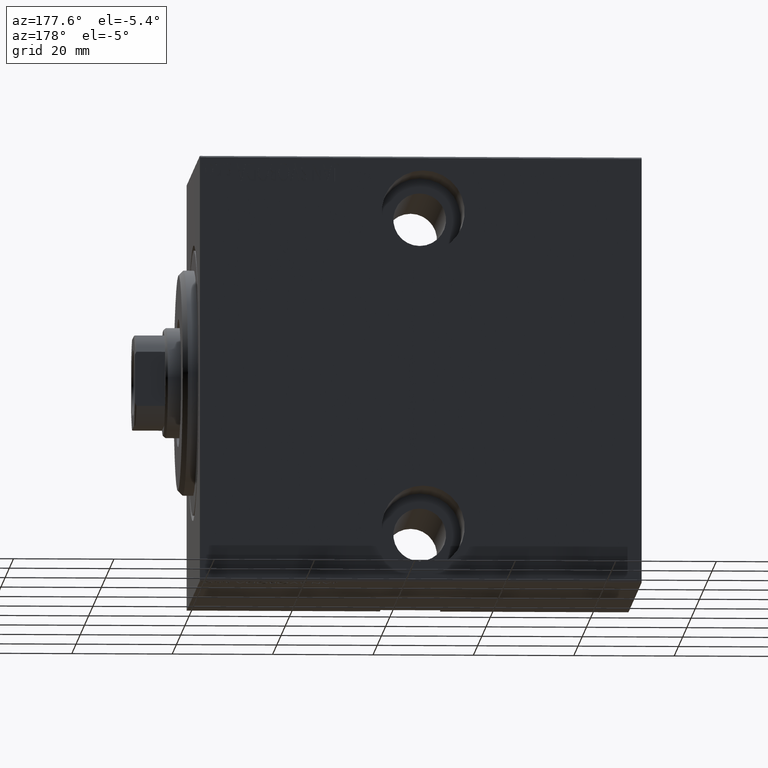
[diagram: clean part render]
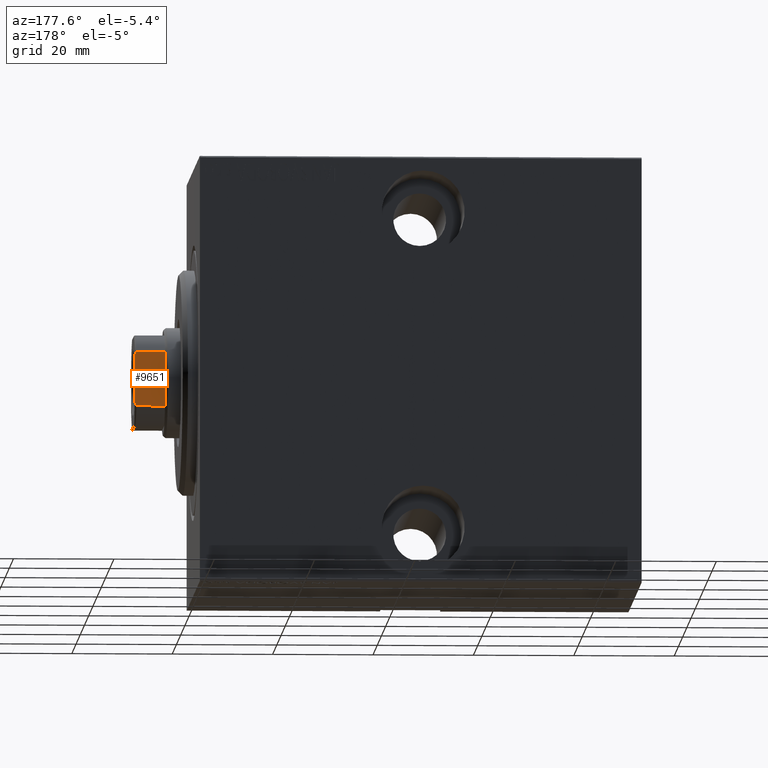
[diagram: same view with one face highlighted and labeled with its STEP entity id]
A machine part, auxiliary view. The second image highlights one B-rep face of the part: STEP entity #9651.
In plain terms, the highlighted planar face has unit normal (0, -1, -0).
Its self-contained STEP definition (entity closure, byte-faithful):
#2316 = CARTESIAN_POINT ( 'NONE',  ( -5.408326913195988794, 8.999999999999998224, -0.001000000000001000089 ) ) ;
#3635 = CARTESIAN_POINT ( 'NONE',  ( 5.207299490555468147, 8.999999999999998224, 87.80354495430066208 ) ) ;
#4510 = CARTESIAN_POINT ( 'NONE',  ( -4.800000000000012257, 8.999999999999998224, 88.00000000000000000 ) ) ;
#6901 = CARTESIAN_POINT ( 'NONE',  ( 4.799999999999979394, 8.999999999999998224, 88.00000000000000000 ) ) ;
#6942 = CARTESIAN_POINT ( 'NONE',  ( -9.000000000000001776, 8.999999999999998224, 81.99999999999998579 ) ) ;
#7178 = ORIENTED_EDGE ( 'NONE', *, *, #30001, .T. ) ;
#7524 = CARTESIAN_POINT ( 'NONE',  ( -4.800000000000012257, 8.999999999999998224, 88.00000000000000000 ) ) ;
#8122 = B_SPLINE_CURVE_WITH_KNOTS ( 'NONE', 3,
 ( #28148, #41413, #15730, #4510 ),
 .UNSPECIFIED., .F., .F.,
 ( 4, 4 ),
 ( 0.000000000000000000, 0.0006782784334759147087 ),
 .UNSPECIFIED. ) ;
#9477 = VERTEX_POINT ( 'NONE', #28650 ) ;
#9651 = ADVANCED_FACE ( 'NONE', ( #20114 ), #36812, .F. ) ;
#10942 = CARTESIAN_POINT ( 'NONE',  ( -5.408326913195988794, 8.999999999999998224, 87.70000000000000284 ) ) ;
#10990 = CARTESIAN_POINT ( 'NONE',  ( 4.799999999999979394, 8.999999999999998224, 88.00000000000000000 ) ) ;
#11633 = B_SPLINE_CURVE_WITH_KNOTS ( 'NONE', 3,
 ( #6901, #20134, #3635, #16872 ),
 .UNSPECIFIED., .F., .F.,
 ( 4, 4 ),
 ( 0.000000000000000000, 0.0006782784334759580768 ),
 .UNSPECIFIED. ) ;
#12509 = LINE ( 'NONE', #2316, #26177 ) ;
#12615 = DIRECTION ( 'NONE',  ( -1.000000000000000000, -0.000000000000000000, -0.000000000000000000 ) ) ;
#12889 = ORIENTED_EDGE ( 'NONE', *, *, #40208, .F. ) ;
#13319 = ORIENTED_EDGE ( 'NONE', *, *, #31642, .T. ) ;
#14185 = VECTOR ( 'NONE', #21021, 1000.000000000000000 ) ;
#15730 = CARTESIAN_POINT ( 'NONE',  ( -5.004607318780315062, 8.999999999999998224, 87.90371420292692051 ) ) ;
#16854 = DIRECTION ( 'NONE',  ( 0.000000000000000000, -1.000000000000000000, 0.000000000000000000 ) ) ;
#16872 = CARTESIAN_POINT ( 'NONE',  ( 5.408326913195989682, 8.999999999999998224, 87.69999999999997442 ) ) ;
#17840 = VECTOR ( 'NONE', #21690, 1000.000000000000000 ) ;
#18514 = ORIENTED_EDGE ( 'NONE', *, *, #39264, .T. ) ;
#18569 = EDGE_CURVE ( 'NONE', #25703, #28573, #8122, .T. ) ;
#20114 = FACE_OUTER_BOUND ( 'NONE', #39797, .T. ) ;
#20134 = CARTESIAN_POINT ( 'NONE',  ( 5.004607318780289305, 8.999999999999998224, 87.90371420292690630 ) ) ;
#21021 = DIRECTION ( 'NONE',  ( -1.000000000000000000, -0.000000000000000000, -0.000000000000000000 ) ) ;
#21690 = DIRECTION ( 'NONE',  ( -0.000000000000000000, -0.000000000000000000, 1.000000000000000000 ) ) ;
#22573 = ORIENTED_EDGE ( 'NONE', *, *, #37368, .F. ) ;
#24885 = DIRECTION ( 'NONE',  ( -0.000000000000000000, -0.000000000000000000, 1.000000000000000000 ) ) ;
#24943 = CARTESIAN_POINT ( 'NONE',  ( 5.408326913195989682, 8.999999999999998224, -0.001000000000001000089 ) ) ;
#24989 = LINE ( 'NONE', #31938, #35822 ) ;
#25703 = VERTEX_POINT ( 'NONE', #10942 ) ;
#26177 = VECTOR ( 'NONE', #24885, 1000.000000000000000 ) ;
#28148 = CARTESIAN_POINT ( 'NONE',  ( -5.408326913195988794, 8.999999999999998224, 87.70000000000000284 ) ) ;
#28573 = VERTEX_POINT ( 'NONE', #7524 ) ;
#28650 = CARTESIAN_POINT ( 'NONE',  ( -5.408326913195987018, 8.999999999999998224, 81.99999999999997158 ) ) ;
#30001 = EDGE_CURVE ( 'NONE', #34572, #36285, #11633, .T. ) ;
#30289 = ORIENTED_EDGE ( 'NONE', *, *, #18569, .T. ) ;
#31642 = EDGE_CURVE ( 'NONE', #39971, #9477, #34265, .T. ) ;
#31938 = CARTESIAN_POINT ( 'NONE',  ( -9.000000000000001776, 8.999999999999998224, 88.00000000000000000 ) ) ;
#32101 = AXIS2_PLACEMENT_3D ( 'NONE', #33348, #16854, #35383 ) ;
#33348 = CARTESIAN_POINT ( 'NONE',  ( -9.000000000000001776, 8.999999999999998224, 88.00000000000000000 ) ) ;
#34265 = LINE ( 'NONE', #6942, #14185 ) ;
#34572 = VERTEX_POINT ( 'NONE', #10990 ) ;
#35383 = DIRECTION ( 'NONE',  ( 0.000000000000000000, -0.000000000000000000, -1.000000000000000000 ) ) ;
#35822 = VECTOR ( 'NONE', #12615, 1000.000000000000000 ) ;
#36101 = CARTESIAN_POINT ( 'NONE',  ( 5.408326913195989682, 8.999999999999998224, 87.69999999999997442 ) ) ;
#36285 = VERTEX_POINT ( 'NONE', #36101 ) ;
#36812 = PLANE ( 'NONE',  #32101 ) ;
#37368 = EDGE_CURVE ( 'NONE', #34572, #28573, #24989, .T. ) ;
#39264 = EDGE_CURVE ( 'NONE', #9477, #25703, #12509, .T. ) ;
#39328 = CARTESIAN_POINT ( 'NONE',  ( 5.408326913195989682, 8.999999999999998224, 81.99999999999997158 ) ) ;
#39797 = EDGE_LOOP ( 'NONE', ( #22573, #7178, #12889, #13319, #18514, #30289 ) ) ;
#39971 = VERTEX_POINT ( 'NONE', #39328 ) ;
#40208 = EDGE_CURVE ( 'NONE', #39971, #36285, #41463, .T. ) ;
#41413 = CARTESIAN_POINT ( 'NONE',  ( -5.207299490555478805, 8.999999999999998224, 87.80354495430067630 ) ) ;
#41463 = LINE ( 'NONE', #24943, #17840 ) ;